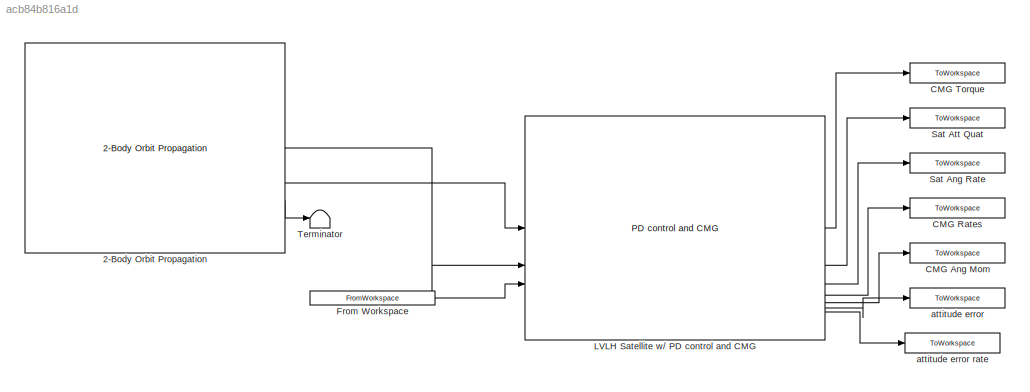
MODEL slx_acb84b816a1d
KIND model
CONFIG AbsTol = auto
CONFIG EnableMultiTasking = off
CONFIG FixedStep = dtSim
CONFIG MaxStep = auto
CONFIG MinStep = auto
CONFIG RelTol = 1e-3
CONFIG SampleTimeConstraint = Unconstrained
CONFIG SolverName = ode4
CONFIG StartTime = 0
CONFIG StopTime = tFinal
BLOCK [Reference] 2-Body Orbit Propagation  REF=orbitProp2B_sl/2-Body Orbit Propagation
  SourceBlock = orbitProp2B_sl/2-Body Orbit Propagation
BLOCK [ToWorkspace] CMG Ang Mom 
  FixptAsFi = on
  MaxDataPoints = inf
  SampleTime = dtSim
  SaveFormat = Timeseries
  VariableName = cmgAngMom_b
BLOCK [ToWorkspace] CMG Rates
  FixptAsFi = on
  MaxDataPoints = inf
  SampleTime = dtSim
  SaveFormat = Timeseries
  VariableName = gimbalAngles
BLOCK [ToWorkspace] CMG Torque
  FixptAsFi = on
  MaxDataPoints = inf
  SampleTime = dtSim
  SaveFormat = Timeseries
  VariableName = cmgOutputTorque_b
BLOCK [FromWorkspace] From Workspace
  SampleTime = dtSim
  VariableName = [tVec' refSatAngRate_bi]
BLOCK [Reference] LVLH Satellite w// PD control and CMG  REF=issLVLHPointingSim_sl/LVLH Satellite w// PD control and CMG
  SourceBlock = issLVLHPointingSim_sl/LVLH Satellite w// PD control and CMG
BLOCK [ToWorkspace] Sat Ang Rate
  FixptAsFi = on
  MaxDataPoints = inf
  SampleTime = dtSim
  SaveFormat = Timeseries
  VariableName = satAngRate_bi
BLOCK [ToWorkspace] Sat Att Quat
  FixptAsFi = on
  MaxDataPoints = inf
  SampleTime = dtSim
  SaveFormat = Timeseries
  VariableName = satAttQuat_bi
BLOCK [Terminator] Terminator
BLOCK [ToWorkspace] attitude error
  FixptAsFi = on
  MaxDataPoints = inf
  SampleTime = dtSim
  SaveFormat = Timeseries
  VariableName = attitudeError
BLOCK [ToWorkspace] attitude error rate
  FixptAsFi = on
  MaxDataPoints = inf
  SampleTime = dtSim
  SaveFormat = Timeseries
  VariableName = attErrorRate
LINE 2-Body Orbit Propagation:1 -> LVLH Satellite w// PD control and CMG:2
LINE 2-Body Orbit Propagation:2 -> LVLH Satellite w// PD control and CMG:1
LINE 2-Body Orbit Propagation:3 -> Terminator:1
LINE From Workspace:1 -> LVLH Satellite w// PD control and CMG:3
LINE LVLH Satellite w// PD control and CMG:1 -> CMG Torque:1
LINE LVLH Satellite w// PD control and CMG:2 -> Sat Att Quat:1
LINE LVLH Satellite w// PD control and CMG:3 -> Sat Ang Rate:1
LINE LVLH Satellite w// PD control and CMG:4 -> CMG Rates:1
LINE LVLH Satellite w// PD control and CMG:5 -> CMG Ang Mom :1
LINE LVLH Satellite w// PD control and CMG:6 -> attitude error:1
LINE LVLH Satellite w// PD control and CMG:7 -> attitude error rate:1
